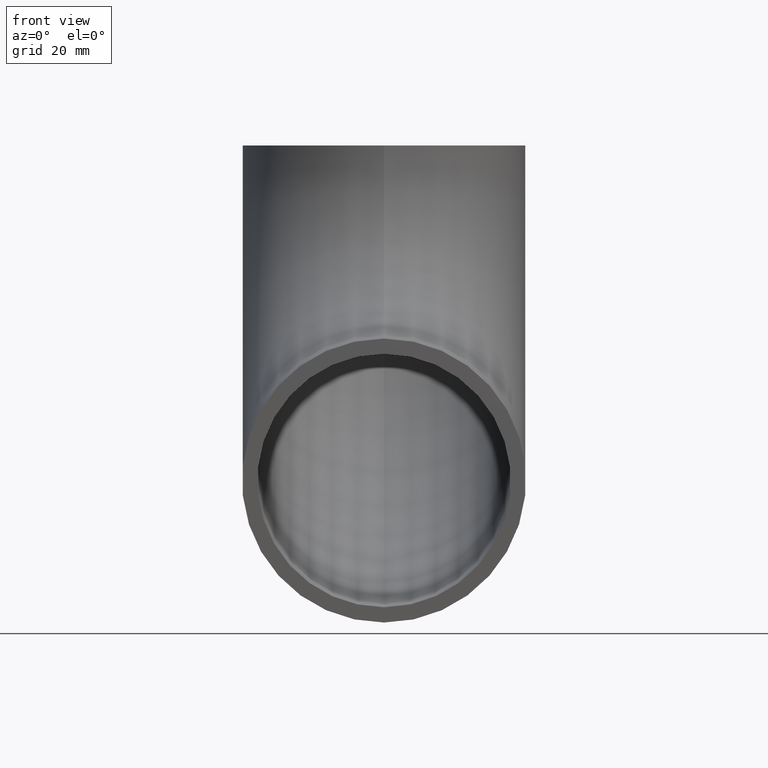
[diagram: clean part render]
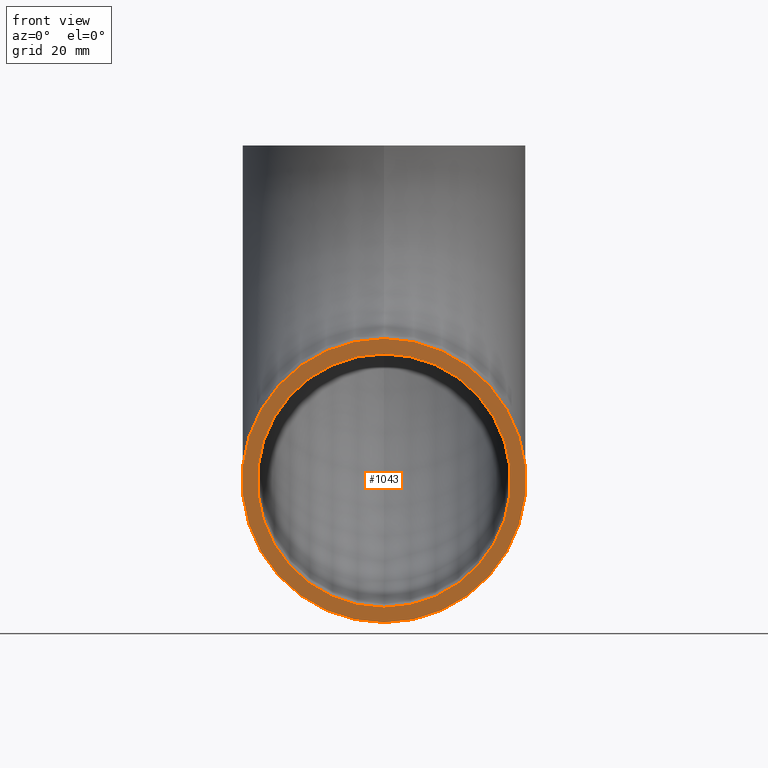
[diagram: same view with one face highlighted and labeled with its STEP entity id]
A machine part, front view. The second image highlights one B-rep face of the part: STEP entity #1043.
In plain terms, the highlighted planar face has unit normal (0, 1, 0).
Its self-contained STEP definition (entity closure, byte-faithful):
#174 = FACE_OUTER_BOUND ( 'NONE', #5062, .T. ) ;
#633 = CARTESIAN_POINT ( 'NONE',  ( 0.0000000000000000000, 0.0000000000000000000, -35.45000000000000300 ) ) ;
#1043 = ADVANCED_FACE ( 'NONE', ( #5738, #174 ), #8365, .F. ) ;
#1065 = CARTESIAN_POINT ( 'NONE',  ( 0.0000000000000000000, 0.0000000000000000000, -57.00000000000000000 ) ) ;
#1178 = CARTESIAN_POINT ( 'NONE',  ( 0.0000000000000000000, 0.0000000000000000000, -78.55000000000001100 ) ) ;
#1425 = CARTESIAN_POINT ( 'NONE',  ( 0.0000000000000000000, 0.0000000000000000000, -57.00000000000000000 ) ) ;
#1633 = VERTEX_POINT ( 'NONE', #4203 ) ;
#1662 = CARTESIAN_POINT ( 'NONE',  ( 0.0000000000000000000, 0.0000000000000000000, -57.00000000000000000 ) ) ;
#1900 = ORIENTED_EDGE ( 'NONE', *, *, #8876, .T. ) ;
#1933 = AXIS2_PLACEMENT_3D ( 'NONE', #1662, #6631, #2523 ) ;
#2168 = EDGE_LOOP ( 'NONE', ( #5447, #1900 ) ) ;
#2523 = DIRECTION ( 'NONE',  ( 0.0000000000000000000, 0.0000000000000000000, 1.000000000000000000 ) ) ;
#2621 = VERTEX_POINT ( 'NONE', #633 ) ;
#2693 = CIRCLE ( 'NONE', #9337, 24.14999999999999900 ) ;
#3206 = VERTEX_POINT ( 'NONE', #9212 ) ;
#3309 = AXIS2_PLACEMENT_3D ( 'NONE', #1425, #7180, #4863 ) ;
#3654 = AXIS2_PLACEMENT_3D ( 'NONE', #9209, #4250, #10025 ) ;
#3952 = DIRECTION ( 'NONE',  ( 0.0000000000000000000, 0.0000000000000000000, 1.000000000000000000 ) ) ;
#4203 = CARTESIAN_POINT ( 'NONE',  ( 0.0000000000000000000, 0.0000000000000000000, -32.85000000000000100 ) ) ;
#4250 = DIRECTION ( 'NONE',  ( 0.0000000000000000000, 1.000000000000000000, 0.0000000000000000000 ) ) ;
#4484 = EDGE_CURVE ( 'NONE', #1633, #3206, #8133, .T. ) ;
#4755 = DIRECTION ( 'NONE',  ( 0.0000000000000000000, 1.000000000000000000, 0.0000000000000000000 ) ) ;
#4814 = CIRCLE ( 'NONE', #1933, 21.55000000000000100 ) ;
#4863 = DIRECTION ( 'NONE',  ( 0.0000000000000000000, 0.0000000000000000000, 1.000000000000000000 ) ) ;
#5062 = EDGE_LOOP ( 'NONE', ( #5685, #9447 ) ) ;
#5320 = AXIS2_PLACEMENT_3D ( 'NONE', #1065, #7735, #6894 ) ;
#5447 = ORIENTED_EDGE ( 'NONE', *, *, #9248, .T. ) ;
#5610 = CARTESIAN_POINT ( 'NONE',  ( 0.0000000000000000000, 0.0000000000000000000, -57.00000000000000000 ) ) ;
#5685 = ORIENTED_EDGE ( 'NONE', *, *, #4484, .F. ) ;
#5738 = FACE_BOUND ( 'NONE', #2168, .T. ) ;
#6631 = DIRECTION ( 'NONE',  ( 0.0000000000000000000, 1.000000000000000000, 0.0000000000000000000 ) ) ;
#6894 = DIRECTION ( 'NONE',  ( 0.0000000000000000000, 0.0000000000000000000, 1.000000000000000000 ) ) ;
#7180 = DIRECTION ( 'NONE',  ( 0.0000000000000000000, 1.000000000000000000, 0.0000000000000000000 ) ) ;
#7735 = DIRECTION ( 'NONE',  ( 0.0000000000000000000, 1.000000000000000000, 0.0000000000000000000 ) ) ;
#7928 = EDGE_CURVE ( 'NONE', #3206, #1633, #2693, .T. ) ;
#8133 = CIRCLE ( 'NONE', #3309, 24.14999999999999900 ) ;
#8365 = PLANE ( 'NONE',  #3654 ) ;
#8876 = EDGE_CURVE ( 'NONE', #9287, #2621, #4814, .T. ) ;
#9209 = CARTESIAN_POINT ( 'NONE',  ( 0.0000000000000000000, 0.0000000000000000000, -57.00000000000000000 ) ) ;
#9212 = CARTESIAN_POINT ( 'NONE',  ( 0.0000000000000000000, 0.0000000000000000000, -81.15000000000000600 ) ) ;
#9248 = EDGE_CURVE ( 'NONE', #2621, #9287, #10100, .T. ) ;
#9287 = VERTEX_POINT ( 'NONE', #1178 ) ;
#9337 = AXIS2_PLACEMENT_3D ( 'NONE', #5610, #4755, #3952 ) ;
#9447 = ORIENTED_EDGE ( 'NONE', *, *, #7928, .F. ) ;
#10025 = DIRECTION ( 'NONE',  ( 0.0000000000000000000, -0.0000000000000000000, 1.000000000000000000 ) ) ;
#10100 = CIRCLE ( 'NONE', #5320, 21.55000000000000100 ) ;